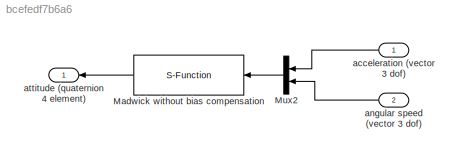
MODEL slx_bcefedf7b6a6
KIND model
CONFIG AbsTol = auto
CONFIG FixedStep = auto
CONFIG MaxStep = auto
CONFIG MinStep = auto
CONFIG RelTol = 1e-3
CONFIG SampleTimeConstraint = Unconstrained
CONFIG Solver = VariableStepAuto
CONFIG SolverMode = Auto
CONFIG SolverName = VariableStepAuto
CONFIG StartTime = 0.0
CONFIG StopTime = 10.0
BLOCK [S-Function] Madwick without bias compensation
  EnableBusSupport = off
  FunctionName = madgwick_bias_sfunc
  Parameters = MADparam
  Ports = [1, 1]
  SFunctionDeploymentMode = off
BLOCK [Mux] Mux2
  DisplayOption = bar
  Inputs = 2
  Ports = [2, 1]
BLOCK [Inport] acceleration (vector 3 dof)
  IconDisplay = Port number
  PortDimensions = 3
BLOCK [Inport] angular speed (vector 3 dof)
  IconDisplay = Port number
  Port = 2
  PortDimensions = 3
BLOCK [Outport] attitude (quaternion 4 element)
  IconDisplay = Port number
LINE Madwick without bias compensation:1 -> attitude (quaternion 4 element):1
LINE Mux2:1 -> Madwick without bias compensation:1
LINE acceleration (vector 3 dof):1 -> Mux2:1
LINE angular speed (vector 3 dof):1 -> Mux2:2
